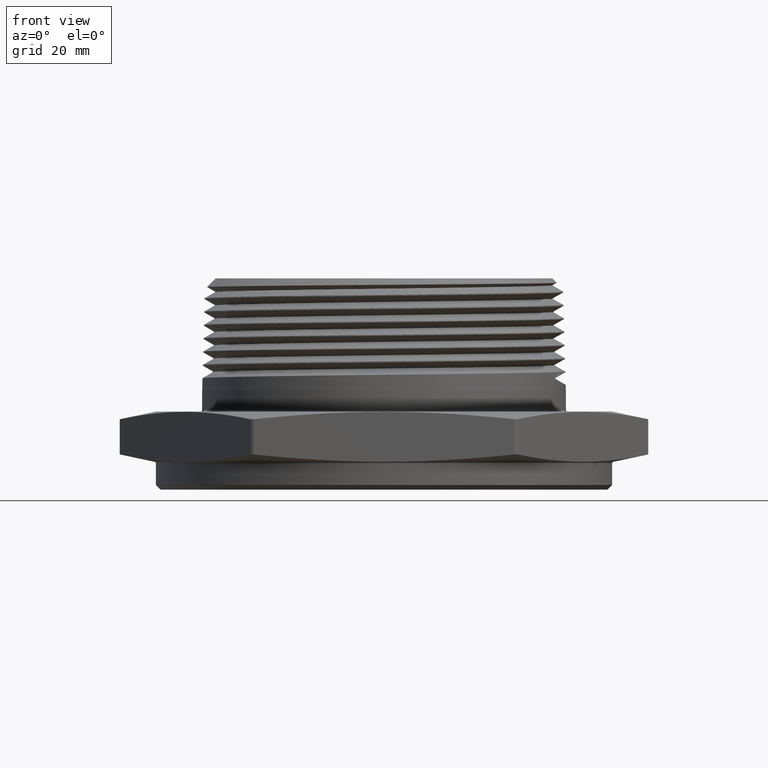
[diagram: clean part render]
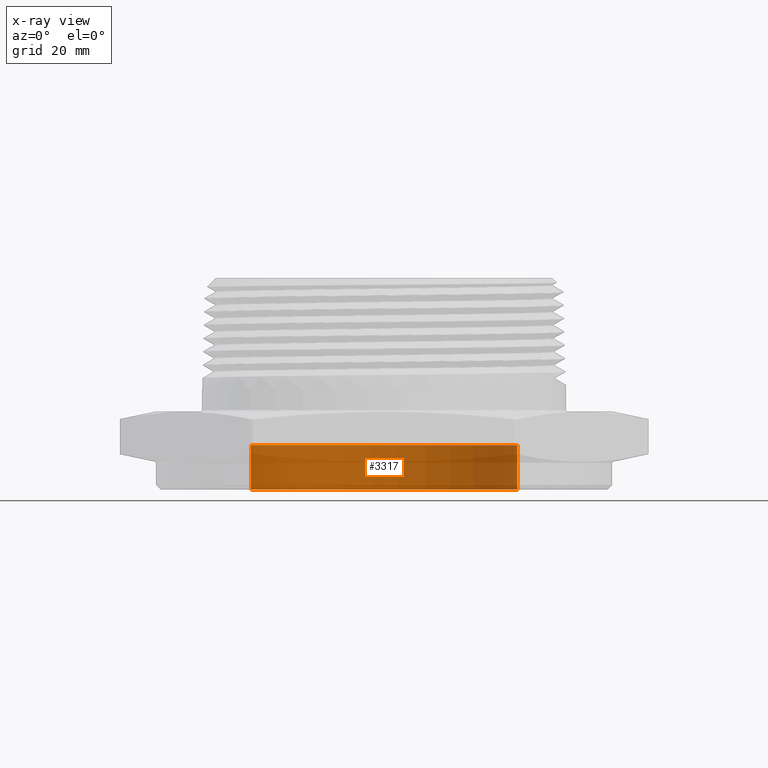
[diagram: x-ray — body ghosted, one internal face saturated and labeled with its STEP entity id]
A machine part, front view, then the same camera in x-ray: the body is ghosted and one INTERNAL B-rep face — a face not visible from any outside direction — is saturated and labeled: STEP entity #3317.
In plain terms, the highlighted cylindrical surface (partial cylindrical patch) has radius 22.098 mm, axis along (0, 0, -1).
Its self-contained STEP definition (entity closure, byte-faithful):
#224 = CARTESIAN_POINT ( 'NONE',  ( 4.981912577346603700E-017, 0.0000000000000000000, 0.1099999999999999900 ) ) ;
#225 = DIRECTION ( 'NONE',  ( 0.0000000000000000000, 0.0000000000000000000, -1.000000000000000000 ) ) ;
#234 = DIRECTION ( 'NONE',  ( -1.000000000000000000, 0.0000000000000000000, 0.0000000000000000000 ) ) ;
#337 = LINE ( 'NONE', #6681, #341 ) ;
#341 = VECTOR ( 'NONE', #7170, 39.37007874015748100 ) ;
#358 = VERTEX_POINT ( 'NONE', #951 ) ;
#360 = VERTEX_POINT ( 'NONE', #5629 ) ;
#361 = VERTEX_POINT ( 'NONE', #7848 ) ;
#362 = VERTEX_POINT ( 'NONE', #2368 ) ;
#951 = CARTESIAN_POINT ( 'NONE',  ( 0.8700000000000000000, 1.065442715258197300E-016, 0.1099999999999999900 ) ) ;
#2368 = CARTESIAN_POINT ( 'NONE',  ( 0.8700000000000000000, 1.065442715258197300E-016, -0.1799999999999999900 ) ) ;
#2824 = FACE_OUTER_BOUND ( 'NONE', #7196, .T. ) ;
#2839 = CYLINDRICAL_SURFACE ( 'NONE', #5823, 0.8700000000000000000 ) ;
#3012 = ORIENTED_EDGE ( 'NONE', *, *, #5659, .T. ) ;
#3013 = ORIENTED_EDGE ( 'NONE', *, *, #5658, .T. ) ;
#3014 = ORIENTED_EDGE ( 'NONE', *, *, #5660, .F. ) ;
#3015 = ORIENTED_EDGE ( 'NONE', *, *, #5661, .F. ) ;
#3317 = ADVANCED_FACE ( 'NONE', ( #2824 ), #2839, .T. ) ;
#4215 = CARTESIAN_POINT ( 'NONE',  ( 4.981912577346603700E-017, 0.0000000000000000000, 0.1099999999999999900 ) ) ;
#4216 = DIRECTION ( 'NONE',  ( 0.0000000000000000000, 0.0000000000000000000, -1.000000000000000000 ) ) ;
#4217 = DIRECTION ( 'NONE',  ( -1.000000000000000000, 0.0000000000000000000, 0.0000000000000000000 ) ) ;
#4219 = CARTESIAN_POINT ( 'NONE',  ( -0.8700000000000000000, 0.0000000000000000000, 0.1099999999999999900 ) ) ;
#4220 = CARTESIAN_POINT ( 'NONE',  ( 4.981912577346603700E-017, 0.0000000000000000000, -0.1799999999999999900 ) ) ;
#4221 = DIRECTION ( 'NONE',  ( 0.0000000000000000000, 0.0000000000000000000, -1.000000000000000000 ) ) ;
#4222 = DIRECTION ( 'NONE',  ( -1.000000000000000000, 0.0000000000000000000, 0.0000000000000000000 ) ) ;
#4223 = DIRECTION ( 'NONE',  ( 0.0000000000000000000, 0.0000000000000000000, -1.000000000000000000 ) ) ;
#5401 = AXIS2_PLACEMENT_3D ( 'NONE', #4215, #4216, #4217 ) ;
#5402 = AXIS2_PLACEMENT_3D ( 'NONE', #4220, #4221, #4222 ) ;
#5629 = CARTESIAN_POINT ( 'NONE',  ( -0.8700000000000000000, 0.0000000000000000000, 0.1099999999999999900 ) ) ;
#5658 = EDGE_CURVE ( 'NONE', #358, #362, #337, .T. ) ;
#5659 = EDGE_CURVE ( 'NONE', #360, #358, #7391, .T. ) ;
#5660 = EDGE_CURVE ( 'NONE', #361, #362, #7393, .T. ) ;
#5661 = EDGE_CURVE ( 'NONE', #360, #361, #7395, .T. ) ;
#5823 = AXIS2_PLACEMENT_3D ( 'NONE', #224, #225, #234 ) ;
#6681 = CARTESIAN_POINT ( 'NONE',  ( 0.8700000000000000000, 1.065442715258197300E-016, 0.1099999999999999900 ) ) ;
#7170 = DIRECTION ( 'NONE',  ( 0.0000000000000000000, 0.0000000000000000000, -1.000000000000000000 ) ) ;
#7196 = EDGE_LOOP ( 'NONE', ( #3012, #3013, #3014, #3015 ) ) ;
#7391 = CIRCLE ( 'NONE', #5401, 0.8700000000000000000 ) ;
#7393 = CIRCLE ( 'NONE', #5402, 0.8700000000000000000 ) ;
#7395 = LINE ( 'NONE', #4219, #7396 ) ;
#7396 = VECTOR ( 'NONE', #4223, 39.37007874015748100 ) ;
#7848 = CARTESIAN_POINT ( 'NONE',  ( -0.8700000000000000000, 0.0000000000000000000, -0.1799999999999999900 ) ) ;